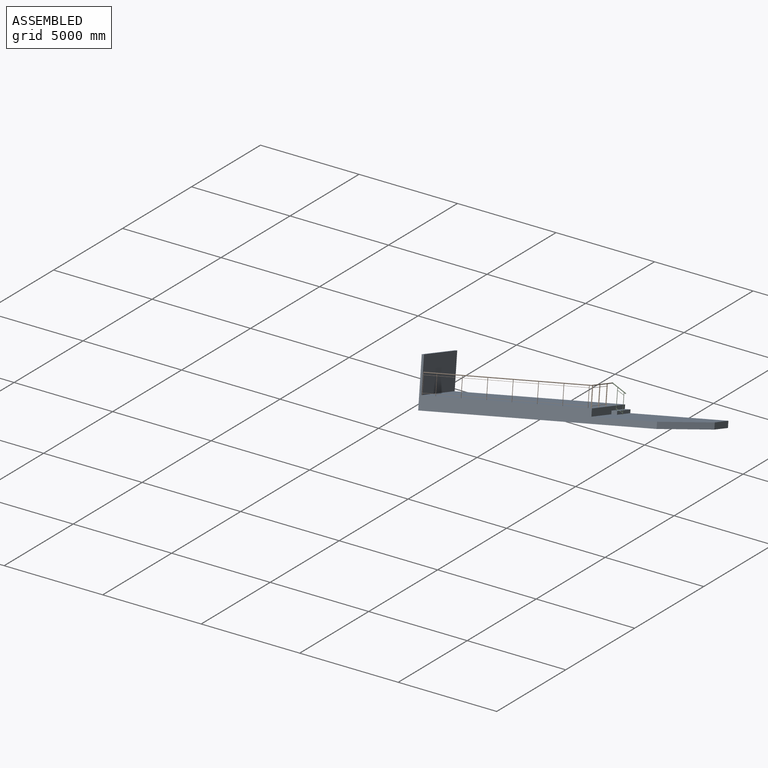
[diagram: assembled view]
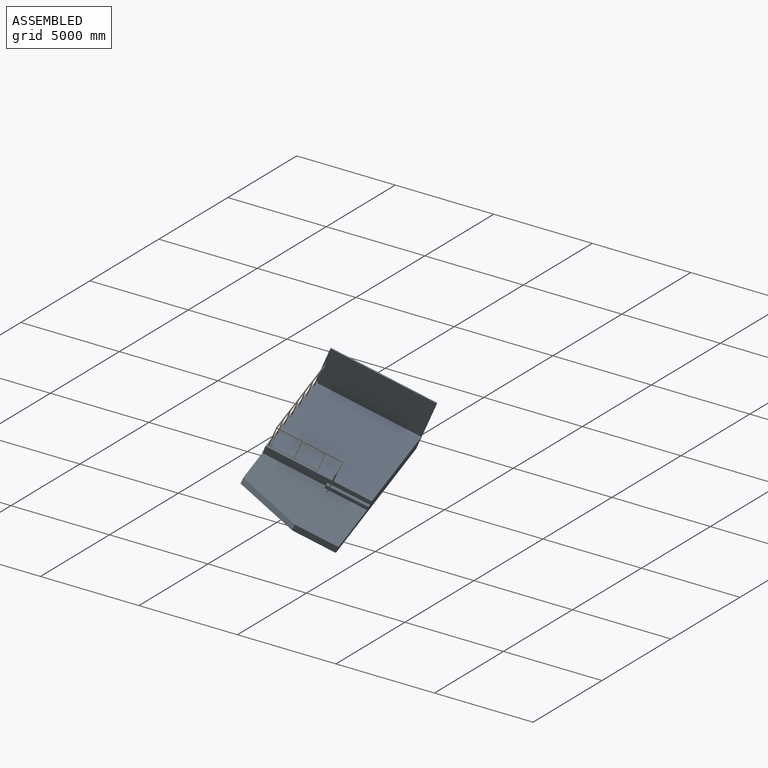
[diagram: assembled view, second angle]
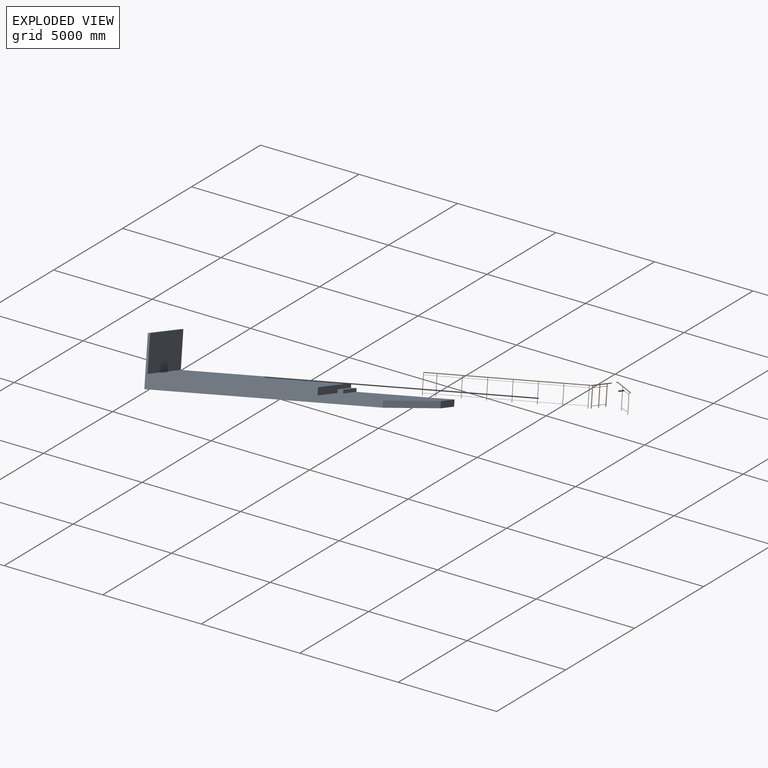
[diagram: exploded view]
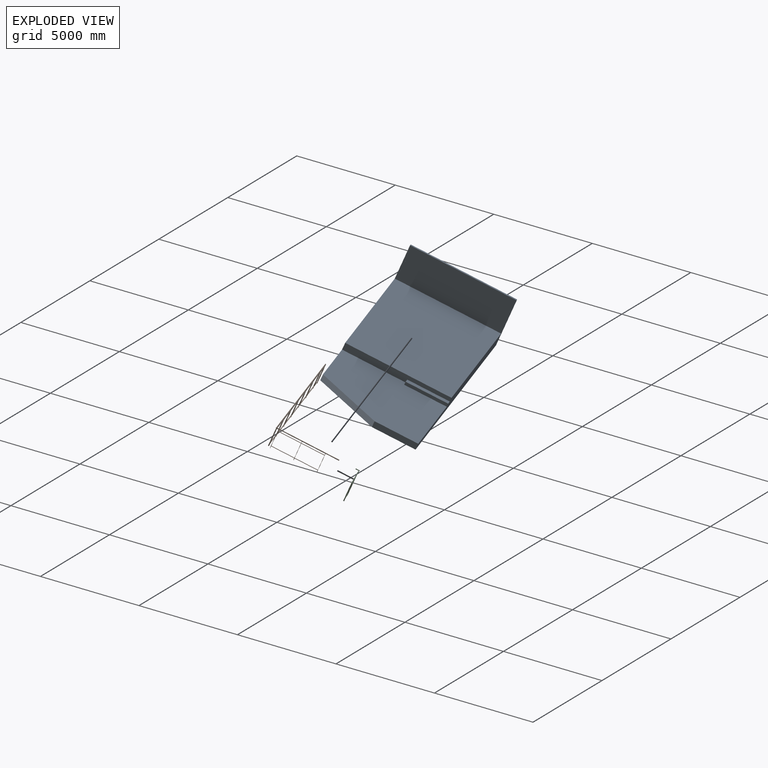
[diagram: exploded view, second angle]
ASSEMBLY  parts=3 mates=2
PART A: 18 faces, bbox 11990x5000x2345 mm
  f0: plane 7390x5000mm, normal (0,0,1), area 36949916mm2, adj f1,f3,f5,f9,f14,f15,f17
  f1: plane 5000x345mm, normal (1,0,0), area 1415000mm2, adj f0,f3,f8,f9,f11,f12
  f2: plane 2049.86x300mm, normal (1,0,0), area 614959.1mm2, adj f4,f8,f9,f10
  f3: plane 10337.32x2345mm, normal (0,-1,0), area 5855245.6mm2, adj f0,f1,f4,f5,f6,f7,f8,f10
  f4: plane 11990x5000mm, normal (0,0,-1), area 57512182.4mm2, adj f2,f3,f7,f9,f10
  f5: plane 5000x1700mm, normal (1,0,0), area 8460184mm2, adj f0,f3,f6,f9,f14,f15,f16
  f6: plane 5000x100mm, normal (0,0,1), area 500000mm2, adj f3,f5,f7,f9
  f7: plane 5000x2345mm, normal (-1,0,0), area 11725000mm2, adj f3,f4,f6,f9
  f8: plane 5000x4500mm, normal (0,0,1), area 19572182.4mm2, adj f1,f2,f3,f9,f10,f12,f13
  f9: plane 11990x2345mm, normal (0,1,0), area 6389025mm2, adj f0,f1,f2,f4,f5,f6,f7,f8
  f10: plane 2950.14x1652.68mm, normal (0.87,-0.49,0), area 1014455.2mm2, adj f2,f3,f4,f8
  f11: plane 2000x245mm, normal (0,0,1), area 490000mm2, adj f1,f9,f12,f13
  f12: plane 245x155mm, normal (0,-1,0), area 37975mm2, adj f1,f8,f11,f13
  f13: plane 2000x155mm, normal (1,0,0), area 310000mm2, adj f8,f9,f11,f12
  f14: plane 948x2mm, normal (0,-1,0), area 1896mm2, adj f0,f5,f16,f17
  f15: plane 948x2mm, normal (0,1,0), area 1896mm2, adj f0,f5,f16,f17
  f16: plane 42x2mm, normal (0,0,1), area 84mm2, adj f5,f14,f15,f17
  f17: plane 948x42mm, normal (1,0,0), area 39816mm2, adj f0,f14,f15,f16
PART B: 112 faces, bbox 7321x2969x990 mm
  f0: plane 100x42mm, normal (1,0,0), area 4200mm2, adj f54,f58,f59,f110
  f1: plane 100x42mm, normal (-1,0,0), area 4200mm2, adj f54,f58,f61,f110
  f2: plane 749x42mm, normal (-1,0,0), area 31458mm2, adj f54,f58,f109,f111
  f3: plane 100x42mm, normal (1,0,0), area 3507.3mm2, adj f54,f58,f74,f108
  f4: plane 749x42mm, normal (1,0,0), area 31458mm2, adj f54,f58,f109,f111
  f5: plane 100x42mm, normal (1,0,0), area 4200mm2, adj f54,f58,f61,f106
  f6: plane 100x42mm, normal (-1,0,0), area 4200mm2, adj f54,f58,f62,f106
  f7: plane 100x42mm, normal (1,0,0), area 3507.3mm2, adj f54,f58,f74,f104
  f8: plane 749x42mm, normal (1,0,0), area 31458mm2, adj f54,f58,f105,f107
  f9: plane 749x42mm, normal (-1,0,0), area 31458mm2, adj f54,f58,f105,f107
  f10: plane 100x42mm, normal (-1,0,0), area 3507.3mm2, adj f54,f58,f74,f104
  f11: plane 100x42mm, normal (-1,0,0), area 4200mm2, adj f54,f58,f63,f102
  f12: plane 100x42mm, normal (1,0,0), area 4200mm2, adj f54,f58,f62,f102
  f13: plane 749x42mm, normal (1,0,0), area 31458mm2, adj f54,f58,f101,f103
  f14: plane 100x42mm, normal (1,0,0), area 3507.3mm2, adj f54,f58,f74,f100
  f15: plane 749x42mm, normal (-1,0,0), area 31458mm2, adj f54,f58,f101,f103
  f16: plane 100x42mm, normal (-1,0,0), area 3507.3mm2, adj f54,f58,f74,f100
  f17: plane 100x42mm, normal (-1,0,0), area 4200mm2, adj f54,f58,f64,f98
  f18: plane 100x42mm, normal (1,0,0), area 4200mm2, adj f54,f58,f63,f98
  f19: plane 749x42mm, normal (1,0,0), area 31458mm2, adj f54,f58,f97,f99
  f20: plane 100x42mm, normal (1,0,0), area 3507.3mm2, adj f54,f58,f74,f96
  f21: plane 749x42mm, normal (-1,0,0), area 31458mm2, adj f54,f58,f97,f99
  f22: plane 100x42mm, normal (-1,0,0), area 3507.3mm2, adj f54,f58,f74,f96
  f23: plane 100x42mm, normal (-1,0,0), area 4200mm2, adj f54,f58,f65,f94
  f24: plane 100x42mm, normal (1,0,0), area 4200mm2, adj f54,f58,f64,f94
  f25: plane 749x42mm, normal (1,0,0), area 31458mm2, adj f54,f58,f93,f95
  f26: plane 100x42mm, normal (1,0,0), area 3507.3mm2, adj f54,f58,f74,f92
  f27: plane 749x42mm, normal (-1,0,0), area 31458mm2, adj f54,f58,f93,f95
  f28: plane 100x42mm, normal (-1,0,0), area 3507.3mm2, adj f54,f58,f74,f92
  f29: plane 100x42mm, normal (0,-1,0), area 4200mm2, adj f55,f57,f73,f90
  f30: plane 749x42mm, normal (0,1,0), area 31458mm2, adj f55,f57,f89,f91
  f31: plane 100x42mm, normal (0,1,0), area 4200mm2, adj f55,f57,f71,f90
  f32: plane 100x42mm, normal (0,1,0), area 3507.3mm2, adj f55,f57,f75,f88
  f33: plane 100x42mm, normal (0,-1,0), area 3507.3mm2, adj f55,f57,f75,f88
  f34: plane 749x42mm, normal (0,-1,0), area 31458mm2, adj f55,f57,f89,f91
  f35: plane 100x42mm, normal (0,1,0), area 4200mm2, adj f55,f57,f70,f86
  f36: plane 100x42mm, normal (0,-1,0), area 4200mm2, adj f55,f57,f71,f86
  f37: plane 749x42mm, normal (0,-1,0), area 31458mm2, adj f55,f57,f85,f87
  f38: plane 749x42mm, normal (0,1,0), area 31458mm2, adj f55,f57,f85,f87
  f39: plane 100x42mm, normal (0,1,0), area 3507.3mm2, adj f55,f57,f75,f84
  f40: plane 100x42mm, normal (0,-1,0), area 3507.3mm2, adj f55,f57,f75,f84
  f41: plane 100x42mm, normal (-1,0,0), area 4200mm2, adj f54,f58,f66,f82
  f42: plane 100x42mm, normal (1,0,0), area 4200mm2, adj f54,f58,f65,f82
  f43: plane 749x42mm, normal (1,0,0), area 31458mm2, adj f54,f58,f81,f83
  f44: plane 100x42mm, normal (1,0,0), area 3507.3mm2, adj f54,f58,f74,f80
  f45: plane 749x42mm, normal (-1,0,0), area 31458mm2, adj f54,f58,f81,f83
  f46: plane 100x42mm, normal (-1,0,0), area 3507.3mm2, adj f54,f58,f74,f80
  f47: plane 100x42mm, normal (-1,0,0), area 4200mm2, adj f54,f58,f68,f78
  f48: plane 100x42mm, normal (1,0,0), area 4200mm2, adj f54,f58,f66,f78
  f49: plane 749x42mm, normal (1,0,0), area 31458mm2, adj f54,f58,f77,f79
  f50: plane 100x42mm, normal (1,0,0), area 3507.3mm2, adj f54,f58,f74,f76
  f51: plane 749x42mm, normal (-1,0,0), area 31458mm2, adj f54,f58,f77,f79
  f52: plane 100x42mm, normal (-1,0,0), area 3507.3mm2, adj f54,f58,f74,f76
  f53: plane 990x42mm, normal (-1,0,0), area 41390.7mm2, adj f54,f58,f59,f74
  f54: plane 7195x969mm, normal (0,-1,0), area 219820mm2, adj f0,f1,f2,f3,f4,f5,f6,f7
  f55: plane 2210x969mm, normal (1,0,0), area 72670mm2, adj f29,f30,f31,f32,f33,f34,f35,f36
  f56: plane 42x42mm, normal (0,1,0), area 1385.4mm2, adj f75
  f57: plane 2210x969mm, normal (-1,0,0), area 72670mm2, adj f29,f30,f31,f32,f33,f34,f35,f36
  f58: plane 7195x969mm, normal (0,1,0), area 219820mm2, adj f0,f1,f2,f3,f4,f5,f6,f7
  f59: plane 42x10mm, normal (0,0,-1), area 420mm2, adj f0,f53,f54,f58
  f60: plane 100x42mm, normal (-1,0,0), area 3507.3mm2, adj f54,f58,f74,f108
  f61: plane 42x10mm, normal (0,0,-1), area 420mm2, adj f1,f5,f54,f58
  f62: plane 42x10mm, normal (0,0,-1), area 420mm2, adj f6,f12,f54,f58
  f63: plane 42x10mm, normal (0,0,-1), area 420mm2, adj f11,f18,f54,f58
  f64: plane 42x10mm, normal (0,0,-1), area 420mm2, adj f17,f24,f54,f58
  f65: plane 42x10mm, normal (0,0,-1), area 420mm2, adj f23,f42,f54,f58
  f66: plane 42x10mm, normal (0,0,-1), area 420mm2, adj f41,f48,f54,f58
  f67: plane 969x42mm, normal (1,0,0), area 40005.3mm2, adj f54,f58,f68,f74
  f68: plane 42x10mm, normal (0,0,-1), area 420mm2, adj f47,f54,f58,f67
  f69: plane 969x42mm, normal (0,-1,0), area 40005.3mm2, adj f55,f57,f70,f75
  f70: plane 42x10mm, normal (0,0,-1), area 420mm2, adj f35,f55,f57,f69
  f71: plane 42x10mm, normal (0,0,-1), area 420mm2, adj f31,f36,f55,f57
  f72: plane 969x42mm, normal (0,1,0), area 40005.3mm2, adj f55,f57,f73,f75
  f73: plane 42x10mm, normal (0,0,-1), area 420mm2, adj f29,f55,f57,f72
  f74: cylinder r=21mm len=7321mm, axis (-1,0,0), area 957839.8mm2, adj f3,f7,f10,f14,f16,f20,f22,f26
  f75: cylinder r=21mm len=2969mm, axis (0,-1,0), area 386905.6mm2, adj f32,f33,f39,f40,f55,f56,f57,f69
  f76: plane 1090x42mm, normal (0,0,1), area 45780mm2, adj f50,f52,f54,f58
  f77: plane 1090x42mm, normal (0,0,-1), area 45780mm2, adj f49,f51,f54,f58
  f78: plane 1090x42mm, normal (0,0,-1), area 45780mm2, adj f47,f48,f54,f58
  f79: plane 1090x42mm, normal (0,0,1), area 45780mm2, adj f49,f51,f54,f58
  f80: plane 1090x42mm, normal (0,0,1), area 45780mm2, adj f44,f46,f54,f58
  f81: plane 1090x42mm, normal (0,0,-1), area 45780mm2, adj f43,f45,f54,f58
  f82: plane 1090x42mm, normal (0,0,-1), area 45780mm2, adj f41,f42,f54,f58
  f83: plane 1090x42mm, normal (0,0,1), area 45780mm2, adj f43,f45,f54,f58
  f84: plane 1090x42mm, normal (0,0,1), area 45780mm2, adj f39,f40,f55,f57
  f85: plane 1090x42mm, normal (0,0,-1), area 45780mm2, adj f37,f38,f55,f57
  f86: plane 1090x42mm, normal (0,0,-1), area 45780mm2, adj f35,f36,f55,f57
  f87: plane 1090x42mm, normal (0,0,1), area 45780mm2, adj f37,f38,f55,f57
  f88: plane 1090x42mm, normal (0,0,1), area 45780mm2, adj f32,f33,f55,f57
  f89: plane 1090x42mm, normal (0,0,-1), area 45780mm2, adj f30,f34,f55,f57
  f90: plane 1090x42mm, normal (0,0,-1), area 45780mm2, adj f29,f31,f55,f57
  f91: plane 1090x42mm, normal (0,0,1), area 45780mm2, adj f30,f34,f55,f57
  f92: plane 1090x42mm, normal (0,0,1), area 45780mm2, adj f26,f28,f54,f58
  f93: plane 1090x42mm, normal (0,0,-1), area 45780mm2, adj f25,f27,f54,f58
  f94: plane 1090x42mm, normal (0,0,-1), area 45780mm2, adj f23,f24,f54,f58
  f95: plane 1090x42mm, normal (0,0,1), area 45780mm2, adj f25,f27,f54,f58
  f96: plane 1090x42mm, normal (0,0,1), area 45780mm2, adj f20,f22,f54,f58
  f97: plane 1090x42mm, normal (0,0,-1), area 45780mm2, adj f19,f21,f54,f58
  f98: plane 1090x42mm, normal (0,0,-1), area 45780mm2, adj f17,f18,f54,f58
  f99: plane 1090x42mm, normal (0,0,1), area 45780mm2, adj f19,f21,f54,f58
  f100: plane 1090x42mm, normal (0,0,1), area 45780mm2, adj f14,f16,f54,f58
  f101: plane 1090x42mm, normal (0,0,-1), area 45780mm2, adj f13,f15,f54,f58
  f102: plane 1090x42mm, normal (0,0,-1), area 45780mm2, adj f11,f12,f54,f58
  f103: plane 1090x42mm, normal (0,0,1), area 45780mm2, adj f13,f15,f54,f58
  f104: plane 1090x42mm, normal (0,0,1), area 45780mm2, adj f7,f10,f54,f58
  f105: plane 1090x42mm, normal (0,0,-1), area 45780mm2, adj f8,f9,f54,f58
  f106: plane 1090x42mm, normal (0,0,-1), area 45780mm2, adj f5,f6,f54,f58
  f107: plane 1090x42mm, normal (0,0,1), area 45780mm2, adj f8,f9,f54,f58
  f108: plane 575x42mm, normal (0,0,1), area 24150mm2, adj f3,f54,f58,f60
  f109: plane 575x42mm, normal (0,0,-1), area 24150mm2, adj f2,f4,f54,f58
  f110: plane 575x42mm, normal (0,0,-1), area 24150mm2, adj f0,f1,f54,f58
  f111: plane 575x42mm, normal (0,0,1), area 24150mm2, adj f2,f4,f54,f58
PART C: 20 faces, bbox 644.1x1353.1x184 mm
  f0: plane 42x42mm, normal (0,0,1), area 1385.4mm2, adj f18
  f1: plane 1174.72x300mm, normal (0,0,1), area 26514.6mm2, adj f2,f3,f4,f5,f6,f7,f8,f9
  f2: plane 125.2x42mm, normal (1,0,0), area 4427.1mm2, adj f1,f16,f17,f19
  f3: plane 125.2x42mm, normal (-1,0,0), area 4427.1mm2, adj f1,f16,f17,f19
  f4: plane 280x155mm, normal (0.48,0.87,0), area 13441.6mm2, adj f1,f5,f15,f17
  f5: plane 754.45x42mm, normal (1,0,0), area 31687.1mm2, adj f1,f4,f6,f17
  f6: plane 280x185.77mm, normal (-0.55,-0.83,0), area 14112.9mm2, adj f1,f5,f15,f17
  f7: plane 1019.72x42mm, normal (-1,0,0), area 41997mm2, adj f1,f8,f17,f19
  f8: plane 42x10mm, normal (0,-1,0), area 420mm2, adj f1,f7,f9,f17
  f9: plane 110x42mm, normal (1,0,0), area 4620mm2, adj f1,f8,f10,f17
  f10: plane 280x155mm, normal (-0.48,-0.87,0), area 13441.6mm2, adj f1,f9,f11,f17
  f11: plane 110x42mm, normal (-1,0,0), area 4620mm2, adj f1,f10,f12,f17
  f12: plane 42x10mm, normal (0,-1,0), area 420mm2, adj f1,f11,f13,f17
  f13: plane 975.68x42mm, normal (1,0,0), area 40147.4mm2, adj f1,f12,f17,f19
  f14: plane 42x35mm, normal (0.83,-0.55,0), area 1385.4mm2, adj f19
  f15: plane 723.69x42mm, normal (-1,0,0), area 30394.8mm2, adj f1,f4,f6,f17
  f16: plane 280x185.77mm, normal (0.55,0.83,0), area 14112.9mm2, adj f1,f2,f3,f17
  f17: plane 1174.72x300mm, normal (0,0,-1), area 26514.6mm2, adj f2,f3,f4,f5,f6,f7,f8,f9
  f18: cylinder r=21mm len=184.01mm, axis (0,0,-1), area 21507.4mm2, adj f0,f19
  f19: cylinder r=21mm len=644.06mm, axis (0.83,-0.55,0), area 93951.3mm2, adj f1,f2,f3,f7,f13,f14,f17,f18
PLACE A rot(axis=(-0.75,-0.22,0.63),28.7deg) t=(-965.36,-2306.07,-172.58)mm
PLACE B rot(axis=(-0.75,-0.22,0.63),28.7deg) t=(-1229.07,-1932.38,637.32)mm
PLACE C rot(axis=(0.96,0.12,0.26),70.6deg) t=(4625.23,2588.81,-1313.17)mm
MATE slider B.f75 <-> C.f18  axis (-0.28,0.88,-0.38) through (4736.37,2978.49,-103.11)mm
MATE slider A.f17 <-> B.f53  axis (0.95,0.32,0.05) through (-1261.32,-2133.71,214.11)mm
